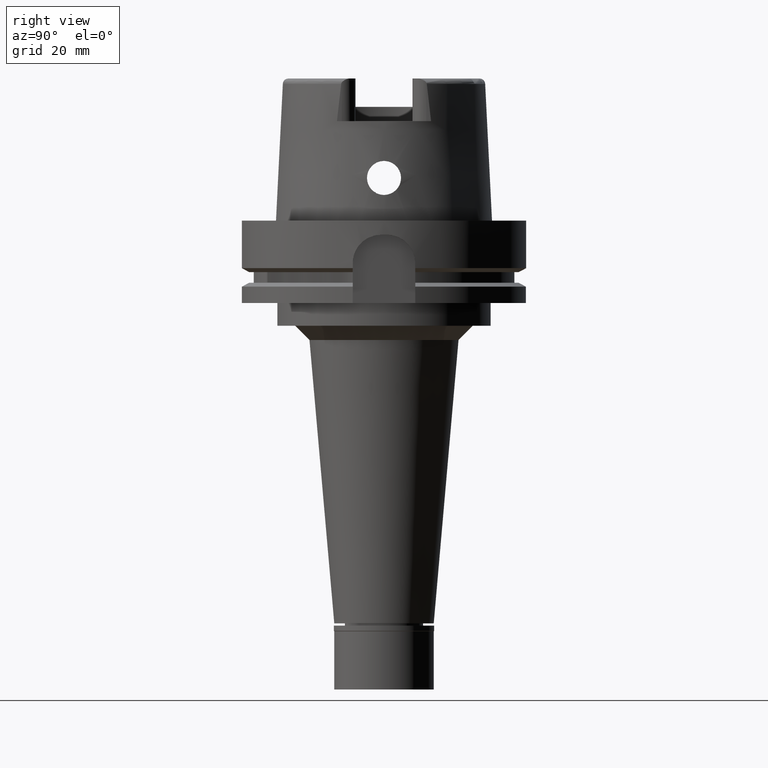
[diagram: clean part render]
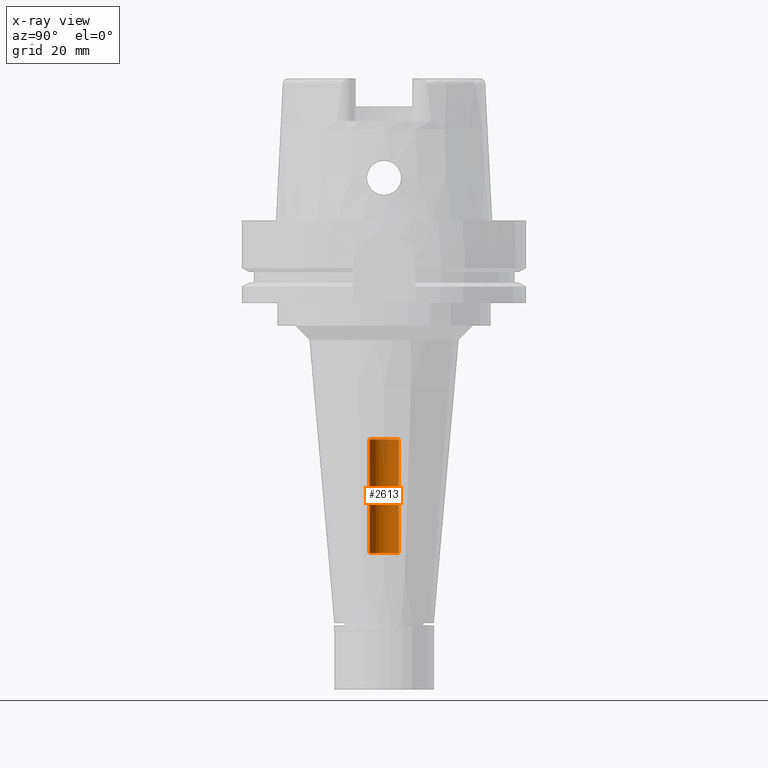
[diagram: x-ray — body ghosted, one internal face saturated and labeled with its STEP entity id]
A machine part, right view, then the same camera in x-ray: the body is ghosted and one INTERNAL B-rep face — a face not visible from any outside direction — is saturated and labeled: STEP entity #2613.
In plain terms, the highlighted cylindrical surface (edge-blend (fillet) strip) has radius 5.2 mm, axis along (0, 0, 1).
Its self-contained STEP definition (entity closure, byte-faithful):
#126 = CARTESIAN_POINT ( 'NONE',  ( 0.0000000000000000000, -5.200000000000000178, -77.00000000000000000 ) ) ;
#177 = CARTESIAN_POINT ( 'NONE',  ( 0.0000000000000000000, 0.0000000000000000000, -77.00000000000000000 ) ) ;
#210 = CARTESIAN_POINT ( 'NONE',  ( 0.0000000000000000000, -5.200000000000000178, -117.0000000000000000 ) ) ;
#274 = DIRECTION ( 'NONE',  ( 0.0000000000000000000, -1.000000000000000000, 0.0000000000000000000 ) ) ;
#511 = VERTEX_POINT ( 'NONE', #126 ) ;
#592 = EDGE_LOOP ( 'NONE', ( #2204, #5057, #3760, #4931 ) ) ;
#630 = VERTEX_POINT ( 'NONE', #4836 ) ;
#682 = AXIS2_PLACEMENT_3D ( 'NONE', #4923, #1958, #5406 ) ;
#1236 = VECTOR ( 'NONE', #4567, 1000.000000000000000 ) ;
#1310 = CIRCLE ( 'NONE', #2942, 5.200000000000000178 ) ;
#1536 = LINE ( 'NONE', #210, #5565 ) ;
#1708 = CARTESIAN_POINT ( 'NONE',  ( 0.0000000000000000000, 5.200000000000000178, -117.0000000000000000 ) ) ;
#1902 = DIRECTION ( 'NONE',  ( 0.0000000000000000000, 1.000000000000000000, 0.0000000000000000000 ) ) ;
#1928 = FACE_OUTER_BOUND ( 'NONE', #592, .T. ) ;
#1958 = DIRECTION ( 'NONE',  ( 0.0000000000000000000, 0.0000000000000000000, 1.000000000000000000 ) ) ;
#2204 = ORIENTED_EDGE ( 'NONE', *, *, #2571, .T. ) ;
#2389 = DIRECTION ( 'NONE',  ( 0.0000000000000000000, 0.0000000000000000000, -1.000000000000000000 ) ) ;
#2495 = LINE ( 'NONE', #2924, #1236 ) ;
#2571 = EDGE_CURVE ( 'NONE', #4252, #511, #1310, .T. ) ;
#2613 = ADVANCED_FACE ( 'NONE', ( #1928 ), #3735, .F. ) ;
#2701 = DIRECTION ( 'NONE',  ( 0.0000000000000000000, 0.0000000000000000000, 1.000000000000000000 ) ) ;
#2924 = CARTESIAN_POINT ( 'NONE',  ( 0.0000000000000000000, 5.200000000000000178, -117.0000000000000000 ) ) ;
#2942 = AXIS2_PLACEMENT_3D ( 'NONE', #177, #2701, #1902 ) ;
#2975 = CARTESIAN_POINT ( 'NONE',  ( 0.0000000000000000000, 5.200000000000000178, -77.00000000000000000 ) ) ;
#3194 = CARTESIAN_POINT ( 'NONE',  ( 0.0000000000000000000, 0.0000000000000000000, -117.0000000000000000 ) ) ;
#3270 = DIRECTION ( 'NONE',  ( 0.0000000000000000000, 0.0000000000000000000, 1.000000000000000000 ) ) ;
#3735 = CYLINDRICAL_SURFACE ( 'NONE', #682, 5.200000000000000178 ) ;
#3760 = ORIENTED_EDGE ( 'NONE', *, *, #4517, .T. ) ;
#3964 = EDGE_CURVE ( 'NONE', #630, #511, #1536, .T. ) ;
#4252 = VERTEX_POINT ( 'NONE', #2975 ) ;
#4391 = CIRCLE ( 'NONE', #5380, 5.200000000000000178 ) ;
#4517 = EDGE_CURVE ( 'NONE', #630, #5217, #4391, .T. ) ;
#4567 = DIRECTION ( 'NONE',  ( 0.0000000000000000000, 0.0000000000000000000, 1.000000000000000000 ) ) ;
#4836 = CARTESIAN_POINT ( 'NONE',  ( 0.0000000000000000000, -5.200000000000000178, -117.0000000000000000 ) ) ;
#4923 = CARTESIAN_POINT ( 'NONE',  ( 0.0000000000000000000, 0.0000000000000000000, -168.7150000000000034 ) ) ;
#4931 = ORIENTED_EDGE ( 'NONE', *, *, #5548, .T. ) ;
#5057 = ORIENTED_EDGE ( 'NONE', *, *, #3964, .F. ) ;
#5217 = VERTEX_POINT ( 'NONE', #1708 ) ;
#5380 = AXIS2_PLACEMENT_3D ( 'NONE', #3194, #2389, #274 ) ;
#5406 = DIRECTION ( 'NONE',  ( 0.0000000000000000000, 1.000000000000000000, 0.0000000000000000000 ) ) ;
#5548 = EDGE_CURVE ( 'NONE', #5217, #4252, #2495, .T. ) ;
#5565 = VECTOR ( 'NONE', #3270, 1000.000000000000000 ) ;